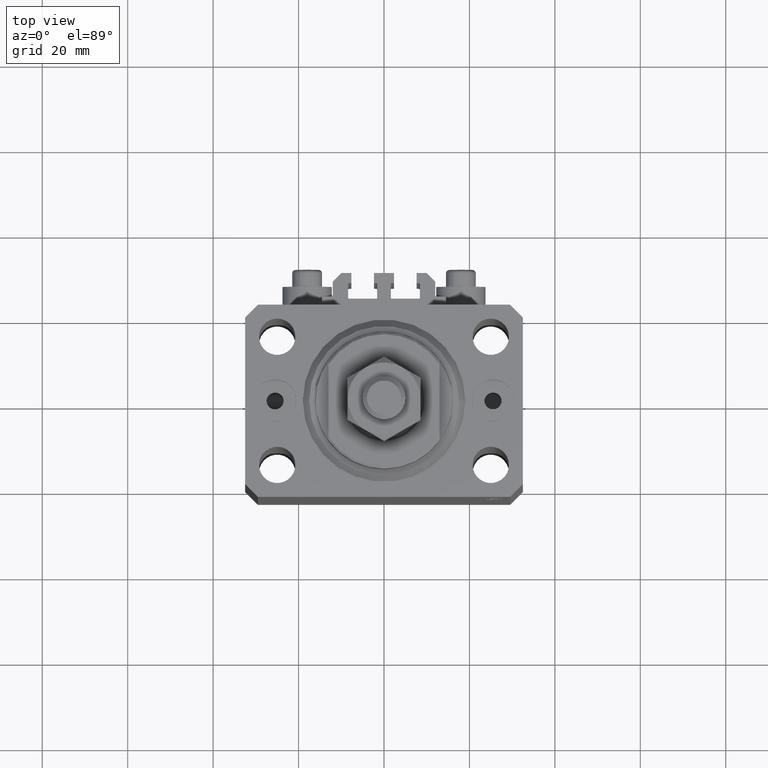
[diagram: clean part render]
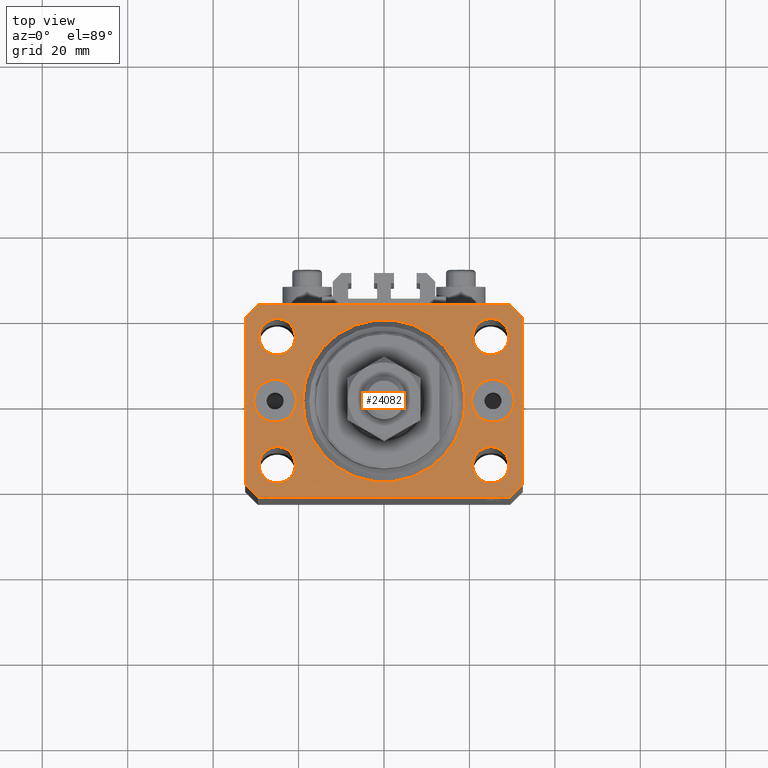
[diagram: same view with one face highlighted and labeled with its STEP entity id]
A machine part, top view. The second image highlights one B-rep face of the part: STEP entity #24082.
In plain terms, the highlighted planar face has unit normal (0, 0, 1).
Its self-contained STEP definition (entity closure, byte-faithful):
#614 = ORIENTED_EDGE ( 'NONE', *, *, #8599, .T. ) ;
#615 = CARTESIAN_POINT ( 'NONE',  ( 30.50000000000333955, 0.000000000000000000, 0.000000000000000000 ) ) ;
#917 = ORIENTED_EDGE ( 'NONE', *, *, #17161, .T. ) ;
#1085 = CARTESIAN_POINT ( 'NONE',  ( -24.99999999999999289, -15.00000000000000355, 0.000000000000000000 ) ) ;
#1108 = CIRCLE ( 'NONE', #20009, 4.249999999976314058 ) ;
#1218 = DIRECTION ( 'NONE',  ( -1.000000000000000000, -3.528251137580330676E-16, 0.000000000000000000 ) ) ;
#1288 = ORIENTED_EDGE ( 'NONE', *, *, #4524, .T. ) ;
#1421 = ORIENTED_EDGE ( 'NONE', *, *, #8223, .F. ) ;
#1573 = CIRCLE ( 'NONE', #43327, 4.249999999976314058 ) ;
#2289 = FACE_BOUND ( 'NONE', #34599, .T. ) ;
#2317 = CIRCLE ( 'NONE', #33825, 5.000000000003342215 ) ;
#2452 = DIRECTION ( 'NONE',  ( 0.000000000000000000, 0.000000000000000000, 1.000000000000000000 ) ) ;
#2766 = CARTESIAN_POINT ( 'NONE',  ( -20.74999999997862687, 14.99999999999999645, 0.000000000000000000 ) ) ;
#2926 = EDGE_CURVE ( 'NONE', #41504, #47952, #9154, .T. ) ;
#3326 = VERTEX_POINT ( 'NONE', #33838 ) ;
#3396 = DIRECTION ( 'NONE',  ( 1.000000000000000000, 0.000000000000000000, 0.000000000000000000 ) ) ;
#3423 = VERTEX_POINT ( 'NONE', #42207 ) ;
#3815 = DIRECTION ( 'NONE',  ( 0.000000000000000000, -1.000000000000000000, 0.000000000000000000 ) ) ;
#4083 = AXIS2_PLACEMENT_3D ( 'NONE', #36569, #43714, #47922 ) ;
#4524 = EDGE_CURVE ( 'NONE', #30120, #39274, #25022, .T. ) ;
#4530 = DIRECTION ( 'NONE',  ( 0.7071067811865483499, 0.7071067811865466846, 0.000000000000000000 ) ) ;
#4621 = DIRECTION ( 'NONE',  ( 1.000000000000000000, 0.000000000000000000, 0.000000000000000000 ) ) ;
#4945 = ORIENTED_EDGE ( 'NONE', *, *, #16680, .F. ) ;
#5273 = VECTOR ( 'NONE', #44007, 1000.000000000000114 ) ;
#5338 = CARTESIAN_POINT ( 'NONE',  ( 20.75000000004271072, 14.99999999999999289, 0.000000000000000000 ) ) ;
#5359 = CARTESIAN_POINT ( 'NONE',  ( 24.99999999999999289, -15.00000000000000355, 0.000000000000000000 ) ) ;
#5900 = DIRECTION ( 'NONE',  ( 1.000000000000000000, 0.000000000000000000, 0.000000000000000000 ) ) ;
#5944 = ORIENTED_EDGE ( 'NONE', *, *, #23136, .T. ) ;
#6006 = ORIENTED_EDGE ( 'NONE', *, *, #45507, .T. ) ;
#6035 = EDGE_CURVE ( 'NONE', #41464, #15418, #28943, .T. ) ;
#6162 = DIRECTION ( 'NONE',  ( 1.000000000000000000, 0.000000000000000000, 0.000000000000000000 ) ) ;
#6482 = FACE_BOUND ( 'NONE', #34948, .T. ) ;
#6541 = DIRECTION ( 'NONE',  ( 0.000000000000000000, 0.000000000000000000, 1.000000000000000000 ) ) ;
#6904 = CARTESIAN_POINT ( 'NONE',  ( -29.49999999999650413, 22.49999999999949907, 0.000000000000000000 ) ) ;
#7740 = AXIS2_PLACEMENT_3D ( 'NONE', #28138, #28866, #20959 ) ;
#7864 = DIRECTION ( 'NONE',  ( 1.000000000000000000, 0.000000000000000000, 0.000000000000000000 ) ) ;
#8108 = DIRECTION ( 'NONE',  ( 0.000000000000000000, -0.000000000000000000, -1.000000000000000000 ) ) ;
#8223 = EDGE_CURVE ( 'NONE', #16014, #3423, #33724, .T. ) ;
#8599 = EDGE_CURVE ( 'NONE', #44016, #3326, #12786, .T. ) ;
#8987 = CARTESIAN_POINT ( 'NONE',  ( 0.000000000000000000, 0.000000000000000000, 0.000000000000000000 ) ) ;
#9154 = CIRCLE ( 'NONE', #15444, 5.000000000003342215 ) ;
#9761 = CARTESIAN_POINT ( 'NONE',  ( 29.49999999999707967, 22.49999999999952038, 0.000000000000000000 ) ) ;
#9788 = EDGE_LOOP ( 'NONE', ( #30214, #41985 ) ) ;
#9939 = FACE_BOUND ( 'NONE', #15233, .T. ) ;
#10116 = CARTESIAN_POINT ( 'NONE',  ( 25.00000000000000000, 14.99999999999999289, 0.000000000000000000 ) ) ;
#11129 = CARTESIAN_POINT ( 'NONE',  ( -29.49999999999650413, -22.49999999999949907, 0.000000000000000000 ) ) ;
#11182 = ORIENTED_EDGE ( 'NONE', *, *, #29361, .F. ) ;
#11295 = EDGE_CURVE ( 'NONE', #28489, #14631, #2317, .T. ) ;
#11405 = CARTESIAN_POINT ( 'NONE',  ( 24.99999999999999289, -15.00000000000000355, 0.000000000000000000 ) ) ;
#11413 = DIRECTION ( 'NONE',  ( 0.000000000000000000, 0.000000000000000000, 1.000000000000000000 ) ) ;
#11537 = CARTESIAN_POINT ( 'NONE',  ( 25.00000000000000000, 14.99999999999999289, 0.000000000000000000 ) ) ;
#11795 = ORIENTED_EDGE ( 'NONE', *, *, #32329, .F. ) ;
#12580 = CIRCLE ( 'NONE', #45690, 4.250000000040370374 ) ;
#12687 = EDGE_CURVE ( 'NONE', #37278, #13107, #28230, .T. ) ;
#12786 = LINE ( 'NONE', #16966, #25889 ) ;
#12927 = EDGE_CURVE ( 'NONE', #39274, #28341, #18371, .T. ) ;
#12995 = DIRECTION ( 'NONE',  ( 0.000000000000000000, 0.000000000000000000, 1.000000000000000000 ) ) ;
#13107 = VERTEX_POINT ( 'NONE', #25977 ) ;
#13171 = CIRCLE ( 'NONE', #19477, 4.249999999957291053 ) ;
#13493 = LINE ( 'NONE', #25104, #36365 ) ;
#14631 = VERTEX_POINT ( 'NONE', #615 ) ;
#14967 = CARTESIAN_POINT ( 'NONE',  ( -25.00000000000000000, 14.99999999999999645, 0.000000000000000000 ) ) ;
#15233 = EDGE_LOOP ( 'NONE', ( #11182, #25265 ) ) ;
#15242 = CARTESIAN_POINT ( 'NONE',  ( 25.50000000000000000, 0.000000000000000000, 0.000000000000000000 ) ) ;
#15418 = VERTEX_POINT ( 'NONE', #5338 ) ;
#15444 = AXIS2_PLACEMENT_3D ( 'NONE', #44033, #6541, #47254 ) ;
#15617 = CARTESIAN_POINT ( 'NONE',  ( 25.50000000000000000, 0.000000000000000000, 0.000000000000000000 ) ) ;
#15725 = EDGE_CURVE ( 'NONE', #27276, #42471, #12580, .T. ) ;
#15930 = EDGE_CURVE ( 'NONE', #21789, #47660, #1573, .T. ) ;
#16014 = VERTEX_POINT ( 'NONE', #42216 ) ;
#16375 = DIRECTION ( 'NONE',  ( 1.000000000000000000, 0.000000000000000000, 0.000000000000000000 ) ) ;
#16517 = CARTESIAN_POINT ( 'NONE',  ( -32.49999999999650413, -19.49999999999949907, 0.000000000000000000 ) ) ;
#16680 = EDGE_CURVE ( 'NONE', #47952, #41504, #33122, .T. ) ;
#16966 = CARTESIAN_POINT ( 'NONE',  ( -29.49999999999650413, -22.49999999999949907, 0.000000000000000000 ) ) ;
#17058 = ORIENTED_EDGE ( 'NONE', *, *, #12927, .T. ) ;
#17161 = EDGE_CURVE ( 'NONE', #24546, #30120, #26651, .T. ) ;
#17479 = AXIS2_PLACEMENT_3D ( 'NONE', #15617, #34363, #23763 ) ;
#17576 = FACE_OUTER_BOUND ( 'NONE', #20374, .T. ) ;
#17841 = CARTESIAN_POINT ( 'NONE',  ( -20.74999999995962341, -15.00000000000000355, 0.000000000000000000 ) ) ;
#18083 = DIRECTION ( 'NONE',  ( 0.000000000000000000, 0.000000000000000000, 1.000000000000000000 ) ) ;
#18167 = VECTOR ( 'NONE', #1218, 1000.000000000000000 ) ;
#18371 = LINE ( 'NONE', #38087, #30583 ) ;
#19382 = AXIS2_PLACEMENT_3D ( 'NONE', #24414, #2452, #5900 ) ;
#19477 = AXIS2_PLACEMENT_3D ( 'NONE', #11537, #30519, #4621 ) ;
#20009 = AXIS2_PLACEMENT_3D ( 'NONE', #5359, #12995, #20879 ) ;
#20262 = AXIS2_PLACEMENT_3D ( 'NONE', #10116, #28126, #6162 ) ;
#20295 = LINE ( 'NONE', #42746, #29293 ) ;
#20374 = EDGE_LOOP ( 'NONE', ( #917, #1288, #17058, #34574, #614, #20968, #6006, #45039 ) ) ;
#20879 = DIRECTION ( 'NONE',  ( 1.000000000000000000, 0.000000000000000000, 0.000000000000000000 ) ) ;
#20910 = DIRECTION ( 'NONE',  ( 1.000000000000000000, 1.176083712526788232E-16, 0.000000000000000000 ) ) ;
#20959 = DIRECTION ( 'NONE',  ( 1.000000000000000000, 0.000000000000000000, 0.000000000000000000 ) ) ;
#20968 = ORIENTED_EDGE ( 'NONE', *, *, #24005, .T. ) ;
#21517 = FACE_BOUND ( 'NONE', #26822, .T. ) ;
#21568 = CARTESIAN_POINT ( 'NONE',  ( -24.99999999999999289, -15.00000000000000355, 0.000000000000000000 ) ) ;
#21789 = VERTEX_POINT ( 'NONE', #41021 ) ;
#22064 = DIRECTION ( 'NONE',  ( 0.000000000000000000, 0.000000000000000000, 1.000000000000000000 ) ) ;
#22696 = DIRECTION ( 'NONE',  ( -0.7071067811865344721, 0.7071067811865606734, 0.000000000000000000 ) ) ;
#22888 = AXIS2_PLACEMENT_3D ( 'NONE', #48422, #11413, #33138 ) ;
#23068 = DIRECTION ( 'NONE',  ( 1.000000000000000000, 0.000000000000000000, 0.000000000000000000 ) ) ;
#23136 = EDGE_CURVE ( 'NONE', #14631, #28489, #47426, .T. ) ;
#23455 = EDGE_CURVE ( 'NONE', #28341, #44016, #13493, .T. ) ;
#23763 = DIRECTION ( 'NONE',  ( 1.000000000000000000, 0.000000000000000000, 0.000000000000000000 ) ) ;
#24005 = EDGE_CURVE ( 'NONE', #3326, #31393, #20295, .T. ) ;
#24082 = ADVANCED_FACE ( 'NONE', ( #17576, #47435, #2289, #9939, #32618, #6482, #21517, #32380 ), #28678, .T. ) ;
#24414 = CARTESIAN_POINT ( 'NONE',  ( -25.00000000000000000, 14.99999999999999645, 0.000000000000000000 ) ) ;
#24539 = CARTESIAN_POINT ( 'NONE',  ( -29.49999999999650413, 22.49999999999949907, 0.000000000000000000 ) ) ;
#24546 = VERTEX_POINT ( 'NONE', #9761 ) ;
#24614 = DIRECTION ( 'NONE',  ( 0.7071067811865474617, -0.7071067811865474617, 0.000000000000000000 ) ) ;
#25022 = LINE ( 'NONE', #24539, #5273 ) ;
#25104 = CARTESIAN_POINT ( 'NONE',  ( -32.49999999999650413, -19.49999999999949907, 0.000000000000000000 ) ) ;
#25265 = ORIENTED_EDGE ( 'NONE', *, *, #15930, .F. ) ;
#25431 = CARTESIAN_POINT ( 'NONE',  ( 32.49999999999702993, 19.49999999999945999, 0.000000000000000000 ) ) ;
#25537 = CARTESIAN_POINT ( 'NONE',  ( 32.49999999999702993, 19.49999999999945999, 0.000000000000000000 ) ) ;
#25889 = VECTOR ( 'NONE', #20910, 1000.000000000000000 ) ;
#25977 = CARTESIAN_POINT ( 'NONE',  ( -29.25000000002137668, 14.99999999999999645, 0.000000000000000000 ) ) ;
#26651 = LINE ( 'NONE', #34044, #18167 ) ;
#26822 = EDGE_LOOP ( 'NONE', ( #32821, #4945 ) ) ;
#27276 = VERTEX_POINT ( 'NONE', #44460 ) ;
#27337 = AXIS2_PLACEMENT_3D ( 'NONE', #21568, #22064, #37114 ) ;
#27479 = VECTOR ( 'NONE', #31700, 1000.000000000000000 ) ;
#28126 = DIRECTION ( 'NONE',  ( 0.000000000000000000, 0.000000000000000000, 1.000000000000000000 ) ) ;
#28138 = CARTESIAN_POINT ( 'NONE',  ( 0.000000000000000000, 0.000000000000000000, 0.000000000000000000 ) ) ;
#28230 = CIRCLE ( 'NONE', #30615, 4.250000000021375790 ) ;
#28341 = VERTEX_POINT ( 'NONE', #16517 ) ;
#28489 = VERTEX_POINT ( 'NONE', #29211 ) ;
#28678 = PLANE ( 'NONE',  #4083 ) ;
#28866 = DIRECTION ( 'NONE',  ( 0.000000000000000000, 0.000000000000000000, 1.000000000000000000 ) ) ;
#28943 = CIRCLE ( 'NONE', #20262, 4.249999999957291053 ) ;
#29211 = CARTESIAN_POINT ( 'NONE',  ( 20.49999999999665690, 6.123233995740857512E-16, 0.000000000000000000 ) ) ;
#29293 = VECTOR ( 'NONE', #4530, 1000.000000000000000 ) ;
#29361 = EDGE_CURVE ( 'NONE', #47660, #21789, #1108, .T. ) ;
#30120 = VERTEX_POINT ( 'NONE', #6904 ) ;
#30214 = ORIENTED_EDGE ( 'NONE', *, *, #40675, .F. ) ;
#30519 = DIRECTION ( 'NONE',  ( 0.000000000000000000, 0.000000000000000000, 1.000000000000000000 ) ) ;
#30583 = VECTOR ( 'NONE', #3815, 1000.000000000000000 ) ;
#30615 = AXIS2_PLACEMENT_3D ( 'NONE', #14967, #45069, #3396 ) ;
#30639 = VERTEX_POINT ( 'NONE', #25537 ) ;
#30728 = LINE ( 'NONE', #34662, #27479 ) ;
#31144 = CIRCLE ( 'NONE', #44532, 19.00000000000000000 ) ;
#31199 = ORIENTED_EDGE ( 'NONE', *, *, #6035, .F. ) ;
#31393 = VERTEX_POINT ( 'NONE', #47016 ) ;
#31498 = CARTESIAN_POINT ( 'NONE',  ( -30.50000000000333955, 6.123233995740857512E-16, 0.000000000000000000 ) ) ;
#31700 = DIRECTION ( 'NONE',  ( 1.334402673828349134E-14, 1.000000000000000000, 0.000000000000000000 ) ) ;
#32329 = EDGE_CURVE ( 'NONE', #3423, #16014, #31144, .T. ) ;
#32380 = FACE_BOUND ( 'NONE', #42989, .T. ) ;
#32618 = FACE_BOUND ( 'NONE', #9788, .T. ) ;
#32821 = ORIENTED_EDGE ( 'NONE', *, *, #2926, .F. ) ;
#33122 = CIRCLE ( 'NONE', #22888, 5.000000000003342215 ) ;
#33138 = DIRECTION ( 'NONE',  ( 1.000000000000000000, 0.000000000000000000, 0.000000000000000000 ) ) ;
#33724 = CIRCLE ( 'NONE', #7740, 19.00000000000000000 ) ;
#33825 = AXIS2_PLACEMENT_3D ( 'NONE', #15242, #8108, #7864 ) ;
#33838 = CARTESIAN_POINT ( 'NONE',  ( 29.49999999999650413, -22.49999999999949196, 0.000000000000000000 ) ) ;
#34044 = CARTESIAN_POINT ( 'NONE',  ( 29.49999999999707967, 22.49999999999952038, 0.000000000000000000 ) ) ;
#34363 = DIRECTION ( 'NONE',  ( 0.000000000000000000, -0.000000000000000000, -1.000000000000000000 ) ) ;
#34412 = CIRCLE ( 'NONE', #27337, 4.250000000040370374 ) ;
#34487 = ORIENTED_EDGE ( 'NONE', *, *, #41978, .F. ) ;
#34574 = ORIENTED_EDGE ( 'NONE', *, *, #23455, .T. ) ;
#34599 = EDGE_LOOP ( 'NONE', ( #31199, #34487 ) ) ;
#34662 = CARTESIAN_POINT ( 'NONE',  ( 32.49999999999651124, -19.49999999999949196, 0.000000000000000000 ) ) ;
#34948 = EDGE_LOOP ( 'NONE', ( #11795, #1421 ) ) ;
#36254 = ORIENTED_EDGE ( 'NONE', *, *, #11295, .T. ) ;
#36365 = VECTOR ( 'NONE', #24614, 1000.000000000000114 ) ;
#36569 = CARTESIAN_POINT ( 'NONE',  ( 0.000000000000000000, 0.000000000000000000, 0.000000000000000000 ) ) ;
#37114 = DIRECTION ( 'NONE',  ( 1.000000000000000000, 0.000000000000000000, 0.000000000000000000 ) ) ;
#37278 = VERTEX_POINT ( 'NONE', #2766 ) ;
#37613 = CARTESIAN_POINT ( 'NONE',  ( 29.24999999995729283, 14.99999999999999289, 0.000000000000000000 ) ) ;
#37941 = CARTESIAN_POINT ( 'NONE',  ( -32.49999999999650413, 19.49999999999949907, 0.000000000000000000 ) ) ;
#38087 = CARTESIAN_POINT ( 'NONE',  ( -32.49999999999650413, 19.49999999999949907, 0.000000000000000000 ) ) ;
#38305 = EDGE_LOOP ( 'NONE', ( #48386, #48384 ) ) ;
#38825 = DIRECTION ( 'NONE',  ( 0.000000000000000000, 0.000000000000000000, 1.000000000000000000 ) ) ;
#38925 = EDGE_CURVE ( 'NONE', #13107, #37278, #40654, .T. ) ;
#38994 = CARTESIAN_POINT ( 'NONE',  ( -20.49999999999665690, 0.000000000000000000, 0.000000000000000000 ) ) ;
#39274 = VERTEX_POINT ( 'NONE', #37941 ) ;
#40524 = DIRECTION ( 'NONE',  ( 1.000000000000000000, 0.000000000000000000, 0.000000000000000000 ) ) ;
#40654 = CIRCLE ( 'NONE', #19382, 4.250000000021375790 ) ;
#40675 = EDGE_CURVE ( 'NONE', #42471, #27276, #34412, .T. ) ;
#41021 = CARTESIAN_POINT ( 'NONE',  ( 20.75000000002367884, -15.00000000000000355, 0.000000000000000000 ) ) ;
#41464 = VERTEX_POINT ( 'NONE', #37613 ) ;
#41504 = VERTEX_POINT ( 'NONE', #38994 ) ;
#41651 = EDGE_CURVE ( 'NONE', #30639, #24546, #44169, .T. ) ;
#41978 = EDGE_CURVE ( 'NONE', #15418, #41464, #13171, .T. ) ;
#41985 = ORIENTED_EDGE ( 'NONE', *, *, #15725, .F. ) ;
#42207 = CARTESIAN_POINT ( 'NONE',  ( 19.00000000000000000, 0.000000000000000000, 0.000000000000000000 ) ) ;
#42216 = CARTESIAN_POINT ( 'NONE',  ( -19.00000000000000000, 2.326828918379970970E-15, 0.000000000000000000 ) ) ;
#42471 = VERTEX_POINT ( 'NONE', #17841 ) ;
#42746 = CARTESIAN_POINT ( 'NONE',  ( 29.49999999999650413, -22.49999999999949196, 0.000000000000000000 ) ) ;
#42989 = EDGE_LOOP ( 'NONE', ( #5944, #36254 ) ) ;
#43138 = VECTOR ( 'NONE', #22696, 1000.000000000000000 ) ;
#43327 = AXIS2_PLACEMENT_3D ( 'NONE', #11405, #18083, #40524 ) ;
#43714 = DIRECTION ( 'NONE',  ( 0.000000000000000000, 0.000000000000000000, 1.000000000000000000 ) ) ;
#44007 = DIRECTION ( 'NONE',  ( -0.7071067811865474617, -0.7071067811865474617, 0.000000000000000000 ) ) ;
#44016 = VERTEX_POINT ( 'NONE', #11129 ) ;
#44033 = CARTESIAN_POINT ( 'NONE',  ( -25.50000000000000000, 0.000000000000000000, 0.000000000000000000 ) ) ;
#44169 = LINE ( 'NONE', #25431, #43138 ) ;
#44460 = CARTESIAN_POINT ( 'NONE',  ( -29.25000000004036593, -15.00000000000000355, 0.000000000000000000 ) ) ;
#44532 = AXIS2_PLACEMENT_3D ( 'NONE', #8987, #38825, #16375 ) ;
#45039 = ORIENTED_EDGE ( 'NONE', *, *, #41651, .T. ) ;
#45069 = DIRECTION ( 'NONE',  ( 0.000000000000000000, 0.000000000000000000, 1.000000000000000000 ) ) ;
#45507 = EDGE_CURVE ( 'NONE', #31393, #30639, #30728, .T. ) ;
#45690 = AXIS2_PLACEMENT_3D ( 'NONE', #1085, #45750, #23068 ) ;
#45750 = DIRECTION ( 'NONE',  ( 0.000000000000000000, 0.000000000000000000, 1.000000000000000000 ) ) ;
#47016 = CARTESIAN_POINT ( 'NONE',  ( 32.49999999999651124, -19.49999999999949196, 0.000000000000000000 ) ) ;
#47254 = DIRECTION ( 'NONE',  ( 1.000000000000000000, 0.000000000000000000, 0.000000000000000000 ) ) ;
#47426 = CIRCLE ( 'NONE', #17479, 5.000000000003342215 ) ;
#47435 = FACE_BOUND ( 'NONE', #38305, .T. ) ;
#47660 = VERTEX_POINT ( 'NONE', #48170 ) ;
#47922 = DIRECTION ( 'NONE',  ( 1.000000000000000000, 0.000000000000000000, -0.000000000000000000 ) ) ;
#47952 = VERTEX_POINT ( 'NONE', #31498 ) ;
#48170 = CARTESIAN_POINT ( 'NONE',  ( 29.24999999997631051, -15.00000000000000355, 0.000000000000000000 ) ) ;
#48384 = ORIENTED_EDGE ( 'NONE', *, *, #38925, .F. ) ;
#48386 = ORIENTED_EDGE ( 'NONE', *, *, #12687, .F. ) ;
#48422 = CARTESIAN_POINT ( 'NONE',  ( -25.50000000000000000, 0.000000000000000000, 0.000000000000000000 ) ) ;